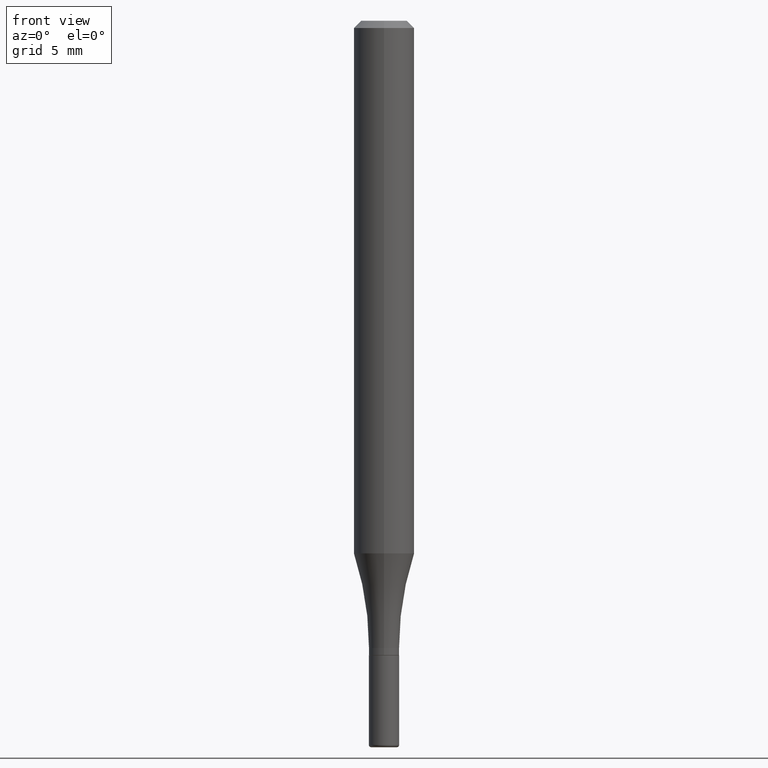
[diagram: clean part render]
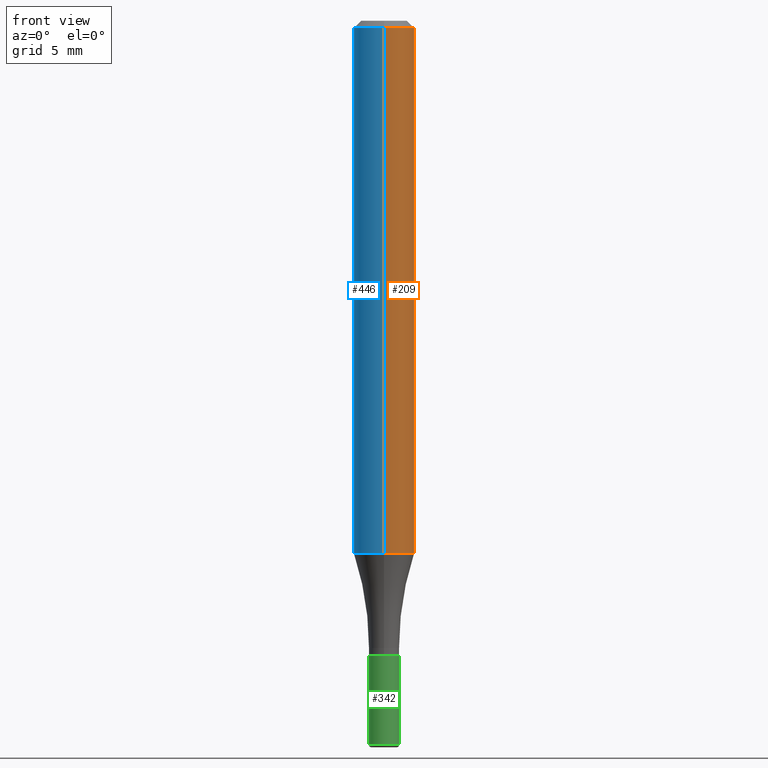
[diagram: same view with three faces highlighted in distinct colors, each labeled with its STEP entity id]
A machine part, front view with three faces highlighted in distinct colors.
Their STEP definitions:

[orange] entity #209 — the highlighted cylindrical surface (edge-blend (fillet) strip) has radius 1.5875 mm, axis along (-0, 0, 1).
#31 = DIRECTION ( 'NONE',  ( -2.441260385824143346E-29, 3.497508036328499221E-15, 1.000000000000000000 ) ) ;
#34 = VERTEX_POINT ( 'NONE', #130 ) ;
#41 = ORIENTED_EDGE ( 'NONE', *, *, #65, .T. ) ;
#52 = CARTESIAN_POINT ( 'NONE',  ( -4.287811248607203282E-16, -0.06250000000000005551, -0.01499999999999948597 ) ) ;
#61 = CARTESIAN_POINT ( 'NONE',  ( 4.440892098500627148E-16, 0.06250000000000001388, -2.185942522705312752E-16 ) ) ;
#65 = EDGE_CURVE ( 'NONE', #284, #34, #73, .T. ) ;
#73 = CIRCLE ( 'NONE', #407, 0.06250000000000002776 ) ;
#100 = LINE ( 'NONE', #61, #148 ) ;
#104 = EDGE_CURVE ( 'NONE', #284, #312, #503, .T. ) ;
#106 = CARTESIAN_POINT ( 'NONE',  ( -4.364351673553917187E-16, -0.06250000000000001388, 2.185942522705312752E-16 ) ) ;
#130 = CARTESIAN_POINT ( 'NONE',  ( 4.440892098500899305E-16, 0.06249999999999618361, -1.099843812550049371 ) ) ;
#145 = ORIENTED_EDGE ( 'NONE', *, *, #506, .F. ) ;
#148 = VECTOR ( 'NONE', #219, 39.37007874015748143 ) ;
#187 = EDGE_LOOP ( 'NONE', ( #41, #438, #145, #234 ) ) ;
#190 = CARTESIAN_POINT ( 'NONE',  ( 2.685005130172230047E-29, -3.846712573099973362E-15, -1.099843812550049149 ) ) ;
#195 = VECTOR ( 'NONE', #31, 39.37007874015748143 ) ;
#209 = ADVANCED_FACE ( 'NONE', ( #274 ), #505, .T. ) ;
#216 = AXIS2_PLACEMENT_3D ( 'NONE', #241, #405, #319 ) ;
#219 = DIRECTION ( 'NONE',  ( -2.441260385824143346E-29, 3.497508036328499221E-15, 1.000000000000000000 ) ) ;
#234 = ORIENTED_EDGE ( 'NONE', *, *, #104, .F. ) ;
#241 = CARTESIAN_POINT ( 'NONE',  ( 3.661890578736142327E-31, -5.246262054492645441E-17, -0.01499999999999970281 ) ) ;
#248 = AXIS2_PLACEMENT_3D ( 'NONE', #429, #304, #465 ) ;
#274 = FACE_OUTER_BOUND ( 'NONE', #187, .T. ) ;
#284 = VERTEX_POINT ( 'NONE', #291 ) ;
#291 = CARTESIAN_POINT ( 'NONE',  ( -4.364351673553650947E-16, -0.06250000000000388578, -1.099843812550049149 ) ) ;
#304 = DIRECTION ( 'NONE',  ( -2.441260385824143346E-29, 3.497508036328499615E-15, 1.000000000000000000 ) ) ;
#312 = VERTEX_POINT ( 'NONE', #52 ) ;
#319 = DIRECTION ( 'NONE',  ( -6.982962677686265922E-15, -1.000000000000000000, 3.483106191921935554E-15 ) ) ;
#350 = EDGE_CURVE ( 'NONE', #34, #382, #100, .T. ) ;
#382 = VERTEX_POINT ( 'NONE', #477 ) ;
#392 = DIRECTION ( 'NONE',  ( -2.441260385824143346E-29, 3.497508036328499615E-15, 1.000000000000000000 ) ) ;
#405 = DIRECTION ( 'NONE',  ( -2.441260385824143346E-29, 3.497508036328499615E-15, 1.000000000000000000 ) ) ;
#407 = AXIS2_PLACEMENT_3D ( 'NONE', #190, #392, #470 ) ;
#408 = CIRCLE ( 'NONE', #216, 0.06250000000000000000 ) ;
#429 = CARTESIAN_POINT ( 'NONE',  ( 0.000000000000000000, 0.000000000000000000, 0.000000000000000000 ) ) ;
#438 = ORIENTED_EDGE ( 'NONE', *, *, #350, .T. ) ;
#465 = DIRECTION ( 'NONE',  ( -6.982962677686265922E-15, -1.000000000000000000, 3.497508036328499615E-15 ) ) ;
#470 = DIRECTION ( 'NONE',  ( -6.982962677686265922E-15, -1.000000000000000000, 4.370956789862819572E-15 ) ) ;
#477 = CARTESIAN_POINT ( 'NONE',  ( 4.364351673553919652E-16, 0.06249999999999995143, -0.01499999999999992138 ) ) ;
#503 = LINE ( 'NONE', #106, #195 ) ;
#505 = CYLINDRICAL_SURFACE ( 'NONE', #248, 0.06250000000000001388 ) ;
#506 = EDGE_CURVE ( 'NONE', #312, #382, #408, .T. ) ;

[blue] entity #446 — the highlighted cylindrical surface (edge-blend (fillet) strip) has radius 1.5875 mm, axis along (-0, 0, 1).
#14 = CARTESIAN_POINT ( 'NONE',  ( 2.685005130172230047E-29, -3.846712573099973362E-15, -1.099843812550049149 ) ) ;
#26 = DIRECTION ( 'NONE',  ( -6.982962677686265922E-15, -1.000000000000000000, 3.483106191921935554E-15 ) ) ;
#31 = DIRECTION ( 'NONE',  ( -2.441260385824143346E-29, 3.497508036328499221E-15, 1.000000000000000000 ) ) ;
#34 = VERTEX_POINT ( 'NONE', #130 ) ;
#52 = CARTESIAN_POINT ( 'NONE',  ( -4.287811248607203282E-16, -0.06250000000000005551, -0.01499999999999948597 ) ) ;
#61 = CARTESIAN_POINT ( 'NONE',  ( 4.440892098500627148E-16, 0.06250000000000001388, -2.185942522705312752E-16 ) ) ;
#100 = LINE ( 'NONE', #61, #148 ) ;
#104 = EDGE_CURVE ( 'NONE', #284, #312, #503, .T. ) ;
#106 = CARTESIAN_POINT ( 'NONE',  ( -4.364351673553917187E-16, -0.06250000000000001388, 2.185942522705312752E-16 ) ) ;
#111 = ORIENTED_EDGE ( 'NONE', *, *, #350, .F. ) ;
#118 = EDGE_CURVE ( 'NONE', #382, #312, #276, .T. ) ;
#122 = AXIS2_PLACEMENT_3D ( 'NONE', #14, #487, #212 ) ;
#130 = CARTESIAN_POINT ( 'NONE',  ( 4.440892098500899305E-16, 0.06249999999999618361, -1.099843812550049371 ) ) ;
#148 = VECTOR ( 'NONE', #219, 39.37007874015748143 ) ;
#192 = EDGE_LOOP ( 'NONE', ( #111, #504, #518, #222 ) ) ;
#195 = VECTOR ( 'NONE', #31, 39.37007874015748143 ) ;
#212 = DIRECTION ( 'NONE',  ( -6.982962677686265922E-15, -1.000000000000000000, 4.370956789862819572E-15 ) ) ;
#219 = DIRECTION ( 'NONE',  ( -2.441260385824143346E-29, 3.497508036328499221E-15, 1.000000000000000000 ) ) ;
#222 = ORIENTED_EDGE ( 'NONE', *, *, #118, .F. ) ;
#223 = DIRECTION ( 'NONE',  ( -2.441260385824143346E-29, 3.497508036328499615E-15, 1.000000000000000000 ) ) ;
#242 = EDGE_CURVE ( 'NONE', #34, #284, #353, .T. ) ;
#260 = AXIS2_PLACEMENT_3D ( 'NONE', #388, #223, #26 ) ;
#276 = CIRCLE ( 'NONE', #260, 0.06250000000000000000 ) ;
#284 = VERTEX_POINT ( 'NONE', #291 ) ;
#285 = AXIS2_PLACEMENT_3D ( 'NONE', #515, #478, #368 ) ;
#291 = CARTESIAN_POINT ( 'NONE',  ( -4.364351673553650947E-16, -0.06250000000000388578, -1.099843812550049149 ) ) ;
#312 = VERTEX_POINT ( 'NONE', #52 ) ;
#321 = FACE_OUTER_BOUND ( 'NONE', #192, .T. ) ;
#350 = EDGE_CURVE ( 'NONE', #34, #382, #100, .T. ) ;
#353 = CIRCLE ( 'NONE', #122, 0.06250000000000002776 ) ;
#358 = CYLINDRICAL_SURFACE ( 'NONE', #285, 0.06250000000000001388 ) ;
#368 = DIRECTION ( 'NONE',  ( -6.982962677686265922E-15, -1.000000000000000000, 3.497508036328499615E-15 ) ) ;
#382 = VERTEX_POINT ( 'NONE', #477 ) ;
#388 = CARTESIAN_POINT ( 'NONE',  ( 3.661890578736142327E-31, -5.246262054492645441E-17, -0.01499999999999970281 ) ) ;
#446 = ADVANCED_FACE ( 'NONE', ( #321 ), #358, .T. ) ;
#477 = CARTESIAN_POINT ( 'NONE',  ( 4.364351673553919652E-16, 0.06249999999999995143, -0.01499999999999992138 ) ) ;
#478 = DIRECTION ( 'NONE',  ( -2.441260385824143346E-29, 3.497508036328499615E-15, 1.000000000000000000 ) ) ;
#487 = DIRECTION ( 'NONE',  ( -2.441260385824143346E-29, 3.497508036328499615E-15, 1.000000000000000000 ) ) ;
#503 = LINE ( 'NONE', #106, #195 ) ;
#504 = ORIENTED_EDGE ( 'NONE', *, *, #242, .T. ) ;
#515 = CARTESIAN_POINT ( 'NONE',  ( 0.000000000000000000, 0.000000000000000000, 0.000000000000000000 ) ) ;
#518 = ORIENTED_EDGE ( 'NONE', *, *, #104, .T. ) ;

[green] entity #342 — the highlighted cylindrical surface (edge-blend (fillet) strip) has radius 0.7937 mm, axis along (-0, 0, 1).
#6 = CARTESIAN_POINT ( 'NONE',  ( 0.000000000000000000, 0.000000000000000000, 0.000000000000000000 ) ) ;
#22 = DIRECTION ( 'NONE',  ( 1.000000000000000000, -6.982962677686266711E-15, 4.876176775795936353E-29 ) ) ;
#24 = CIRCLE ( 'NONE', #458, 0.03124999999999985428 ) ;
#39 = CARTESIAN_POINT ( 'NONE',  ( 3.203564136102528897E-29, -4.573840553884520788E-15, -1.310000000000000053 ) ) ;
#54 = DIRECTION ( 'NONE',  ( -2.445468806185136877E-29, 3.491481338843145188E-15, 1.000000000000000000 ) ) ;
#64 = AXIS2_PLACEMENT_3D ( 'NONE', #6, #136, #22 ) ;
#75 = LINE ( 'NONE', #83, #237 ) ;
#83 = CARTESIAN_POINT ( 'NONE',  ( -0.03124999999999989592, 2.220446049250305685E-16, -1.537167215704652977E-30 ) ) ;
#91 = VERTEX_POINT ( 'NONE', #352 ) ;
#105 = ORIENTED_EDGE ( 'NONE', *, *, #278, .T. ) ;
#121 = CARTESIAN_POINT ( 'NONE',  ( 0.03124999999999994102, -4.792058137562216623E-15, -1.310000000000000053 ) ) ;
#127 = LINE ( 'NONE', #339, #157 ) ;
#136 = DIRECTION ( 'NONE',  ( -2.445468806185136597E-29, 3.491481338843145583E-15, 1.000000000000000000 ) ) ;
#141 = DIRECTION ( 'NONE',  ( -2.445468806185136597E-29, 3.491481338843145583E-15, 1.000000000000000000 ) ) ;
#146 = CARTESIAN_POINT ( 'NONE',  ( 3.655975865246779683E-29, -5.219764601570503930E-15, -1.495000000000000329 ) ) ;
#150 = VERTEX_POINT ( 'NONE', #229 ) ;
#156 = EDGE_CURVE ( 'NONE', #230, #150, #24, .T. ) ;
#157 = VECTOR ( 'NONE', #54, 39.37007874015748143 ) ;
#160 = ORIENTED_EDGE ( 'NONE', *, *, #430, .F. ) ;
#177 = AXIS2_PLACEMENT_3D ( 'NONE', #39, #520, #233 ) ;
#188 = DIRECTION ( 'NONE',  ( 1.000000000000000000, -6.982962677686264344E-15, 0.000000000000000000 ) ) ;
#227 = ORIENTED_EDGE ( 'NONE', *, *, #156, .T. ) ;
#229 = CARTESIAN_POINT ( 'NONE',  ( 0.03124999999999985428, -5.437982185248198976E-15, -1.495000000000000329 ) ) ;
#230 = VERTEX_POINT ( 'NONE', #383 ) ;
#233 = DIRECTION ( 'NONE',  ( 1.000000000000000000, -6.982962677686276177E-15, 0.000000000000000000 ) ) ;
#237 = VECTOR ( 'NONE', #403, 39.37007874015748143 ) ;
#253 = FACE_OUTER_BOUND ( 'NONE', #502, .T. ) ;
#270 = CIRCLE ( 'NONE', #177, 0.03124999999999994102 ) ;
#278 = EDGE_CURVE ( 'NONE', #150, #476, #127, .T. ) ;
#303 = ORIENTED_EDGE ( 'NONE', *, *, #425, .F. ) ;
#339 = CARTESIAN_POINT ( 'NONE',  ( 0.03124999999999989592, -2.182175836776951198E-16, 1.523805242436225031E-30 ) ) ;
#342 = ADVANCED_FACE ( 'NONE', ( #253 ), #461, .T. ) ;
#352 = CARTESIAN_POINT ( 'NONE',  ( -0.03124999999999994102, -4.674757972802482629E-15, -1.310000000000000053 ) ) ;
#383 = CARTESIAN_POINT ( 'NONE',  ( -0.03124999999999985428, -4.674757972802482629E-15, -1.495000000000000329 ) ) ;
#403 = DIRECTION ( 'NONE',  ( -2.445468806185136877E-29, 3.491481338843145188E-15, 1.000000000000000000 ) ) ;
#425 = EDGE_CURVE ( 'NONE', #91, #476, #270, .T. ) ;
#430 = EDGE_CURVE ( 'NONE', #230, #91, #75, .T. ) ;
#458 = AXIS2_PLACEMENT_3D ( 'NONE', #146, #141, #188 ) ;
#461 = CYLINDRICAL_SURFACE ( 'NONE', #64, 0.03124999999999989592 ) ;
#476 = VERTEX_POINT ( 'NONE', #121 ) ;
#502 = EDGE_LOOP ( 'NONE', ( #160, #227, #105, #303 ) ) ;
#520 = DIRECTION ( 'NONE',  ( -2.445468806185136597E-29, 3.491481338843145583E-15, 1.000000000000000000 ) ) ;